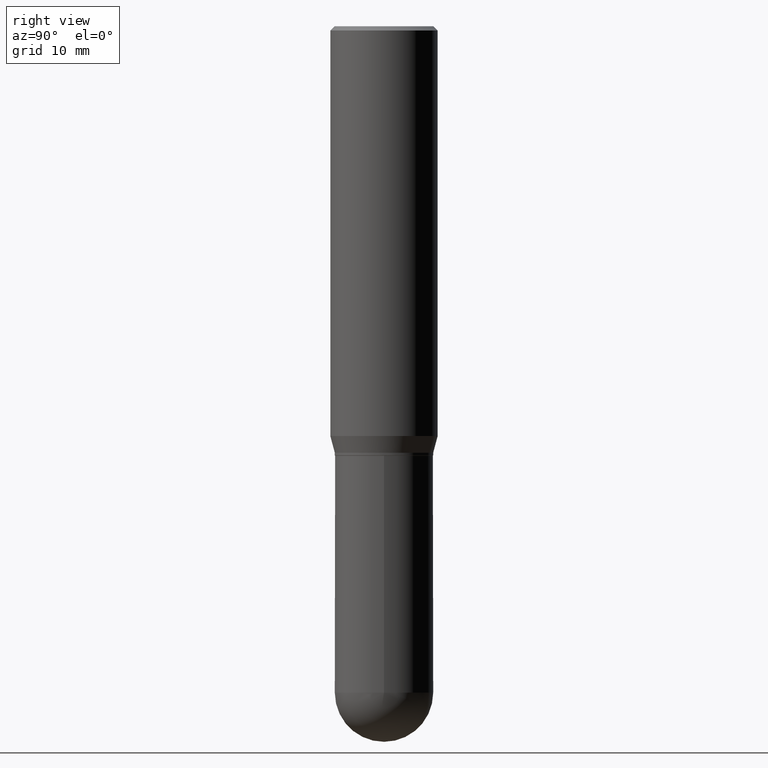
[diagram: clean part render]
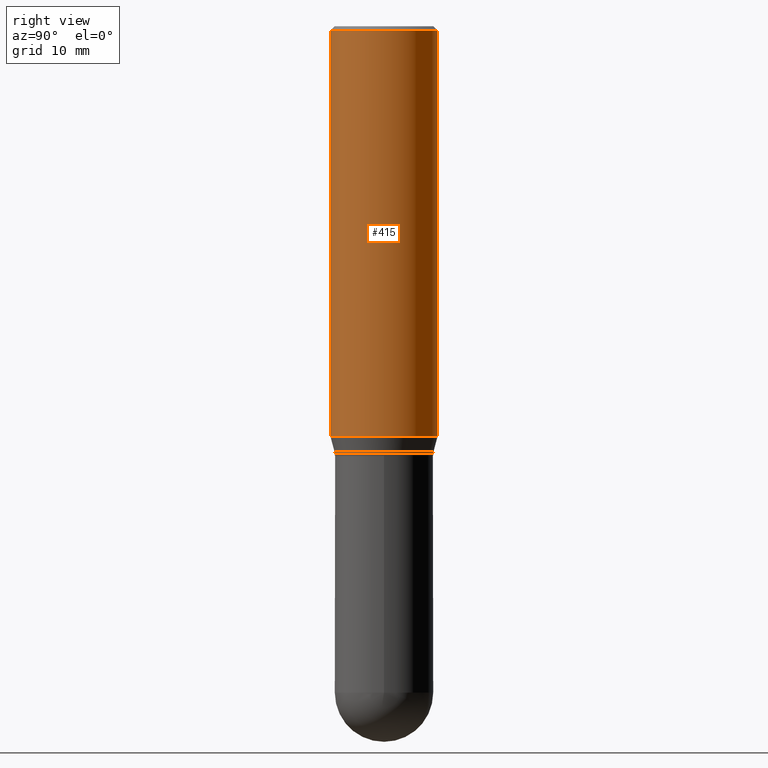
[diagram: same view with one face highlighted and labeled with its STEP entity id]
A machine part, right view. The second image highlights one B-rep face of the part: STEP entity #415.
In plain terms, the highlighted cylindrical surface (partial cylindrical patch) has radius 4.7625 mm, axis along (-0, 0, 1).
Its self-contained STEP definition (entity closure, byte-faithful):
#25 = AXIS2_PLACEMENT_3D ( 'NONE', #380, #480, #137 ) ;
#42 = VERTEX_POINT ( 'NONE', #120 ) ;
#63 = CARTESIAN_POINT ( 'NONE',  ( 3.500855129308181168E-29, -4.999775292141012103E-15, -1.431780007401925348 ) ) ;
#80 = CARTESIAN_POINT ( 'NONE',  ( -1.309305502066174614E-15, -0.1875000000000000833, -0.01499999999999933678 ) ) ;
#82 = EDGE_CURVE ( 'NONE', #448, #310, #295, .T. ) ;
#83 = VECTOR ( 'NONE', #171, 39.37007874015748143 ) ;
#102 = CARTESIAN_POINT ( 'NONE',  ( 0.000000000000000000, 0.000000000000000000, 0.000000000000000000 ) ) ;
#110 = DIRECTION ( 'NONE',  ( -6.982962677686265922E-15, -1.000000000000000000, 3.491999655179909597E-15 ) ) ;
#113 = ORIENTED_EDGE ( 'NONE', *, *, #162, .T. ) ;
#120 = CARTESIAN_POINT ( 'NONE',  ( 1.332267629550222953E-15, 0.1874999999999999445, -0.01500000000000064650 ) ) ;
#124 = CARTESIAN_POINT ( 'NONE',  ( 1.332267629550187651E-15, 0.1875000000000000278, -6.547499353462331727E-16 ) ) ;
#133 = DIRECTION ( 'NONE',  ( -2.445106867821650572E-29, 3.491999655179909992E-15, 1.000000000000000000 ) ) ;
#137 = DIRECTION ( 'NONE',  ( -6.982962677686265922E-15, -1.000000000000000000, 3.494488891895536035E-15 ) ) ;
#147 = AXIS2_PLACEMENT_3D ( 'NONE', #63, #133, #328 ) ;
#151 = DIRECTION ( 'NONE',  ( -2.445106867821650572E-29, 3.491999655179909992E-15, 1.000000000000000000 ) ) ;
#162 = EDGE_CURVE ( 'NONE', #310, #42, #488, .T. ) ;
#166 = EDGE_CURVE ( 'NONE', #448, #233, #402, .T. ) ;
#171 = DIRECTION ( 'NONE',  ( -2.445106867821650572E-29, 3.491999655179910386E-15, 1.000000000000000000 ) ) ;
#193 = CYLINDRICAL_SURFACE ( 'NONE', #364, 0.1875000000000000278 ) ;
#233 = VERTEX_POINT ( 'NONE', #80 ) ;
#273 = CIRCLE ( 'NONE', #25, 0.1875000000000000278 ) ;
#292 = ORIENTED_EDGE ( 'NONE', *, *, #82, .T. ) ;
#295 = CIRCLE ( 'NONE', #147, 0.1875000000000000278 ) ;
#310 = VERTEX_POINT ( 'NONE', #333 ) ;
#324 = EDGE_CURVE ( 'NONE', #233, #42, #273, .T. ) ;
#328 = DIRECTION ( 'NONE',  ( -6.982962677686265922E-15, -1.000000000000000000, 2.913971193241880372E-15 ) ) ;
#333 = CARTESIAN_POINT ( 'NONE',  ( 1.332267629550222558E-15, 0.1874999999999950318, -1.431780007401926014 ) ) ;
#354 = ORIENTED_EDGE ( 'NONE', *, *, #166, .F. ) ;
#364 = AXIS2_PLACEMENT_3D ( 'NONE', #102, #151, #110 ) ;
#365 = CARTESIAN_POINT ( 'NONE',  ( -1.309305502066140101E-15, -0.1875000000000049960, -1.431780007401924903 ) ) ;
#372 = CARTESIAN_POINT ( 'NONE',  ( -1.309305502066175008E-15, -0.1875000000000000278, 6.547499353462331727E-16 ) ) ;
#380 = CARTESIAN_POINT ( 'NONE',  ( 3.667660301732473984E-31, -5.237999482769862300E-17, -0.01499999999999999077 ) ) ;
#383 = FACE_OUTER_BOUND ( 'NONE', #465, .T. ) ;
#387 = ORIENTED_EDGE ( 'NONE', *, *, #324, .F. ) ;
#402 = LINE ( 'NONE', #372, #83 ) ;
#403 = DIRECTION ( 'NONE',  ( -2.445106867821650572E-29, 3.491999655179910386E-15, 1.000000000000000000 ) ) ;
#415 = ADVANCED_FACE ( 'NONE', ( #383 ), #193, .T. ) ;
#420 = VECTOR ( 'NONE', #403, 39.37007874015748143 ) ;
#448 = VERTEX_POINT ( 'NONE', #365 ) ;
#465 = EDGE_LOOP ( 'NONE', ( #292, #113, #387, #354 ) ) ;
#480 = DIRECTION ( 'NONE',  ( -2.445106867821650572E-29, 3.491999655179909992E-15, 1.000000000000000000 ) ) ;
#488 = LINE ( 'NONE', #124, #420 ) ;